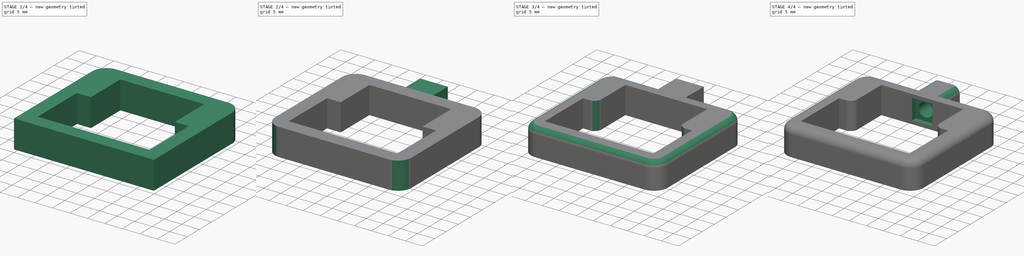
[diagram: build sequence overview — one tinted view per stage of 4, left to right]
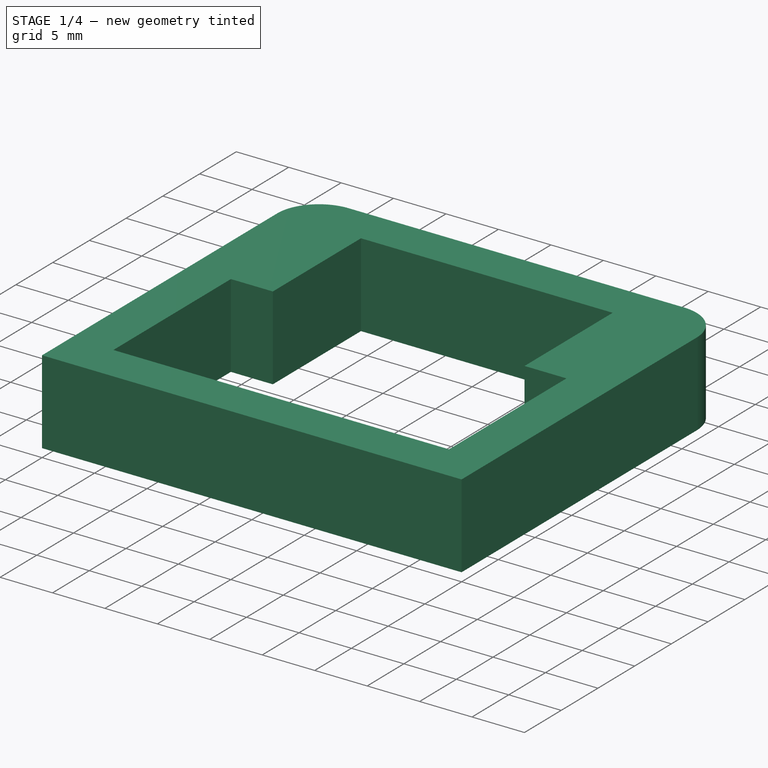
[diagram: stage 1 of 4 — iso view after this stage's code; geometry added in this stage tinted green]
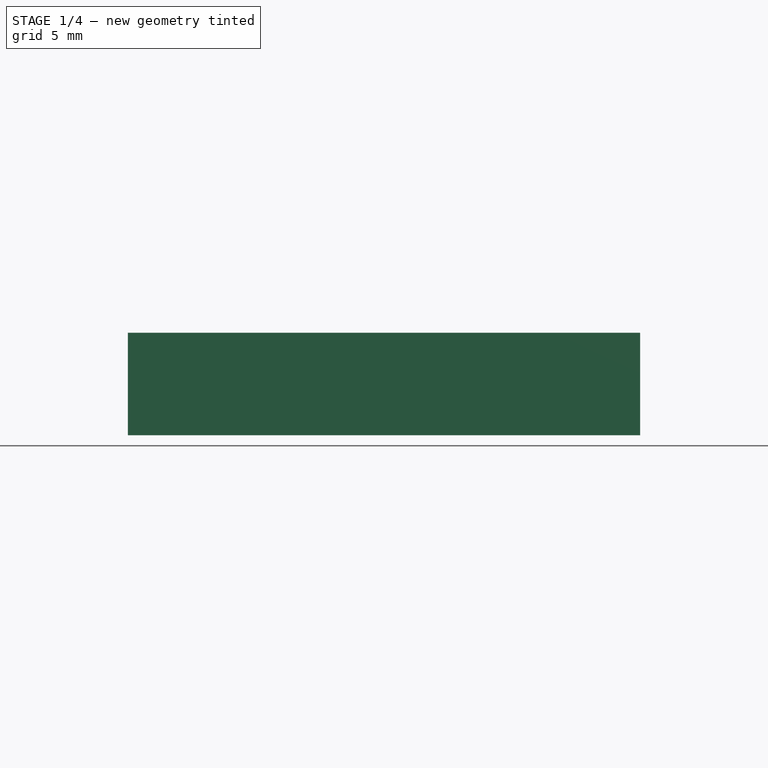
[diagram: stage 1 of 4 — front view after this stage's code; geometry added in this stage tinted green]
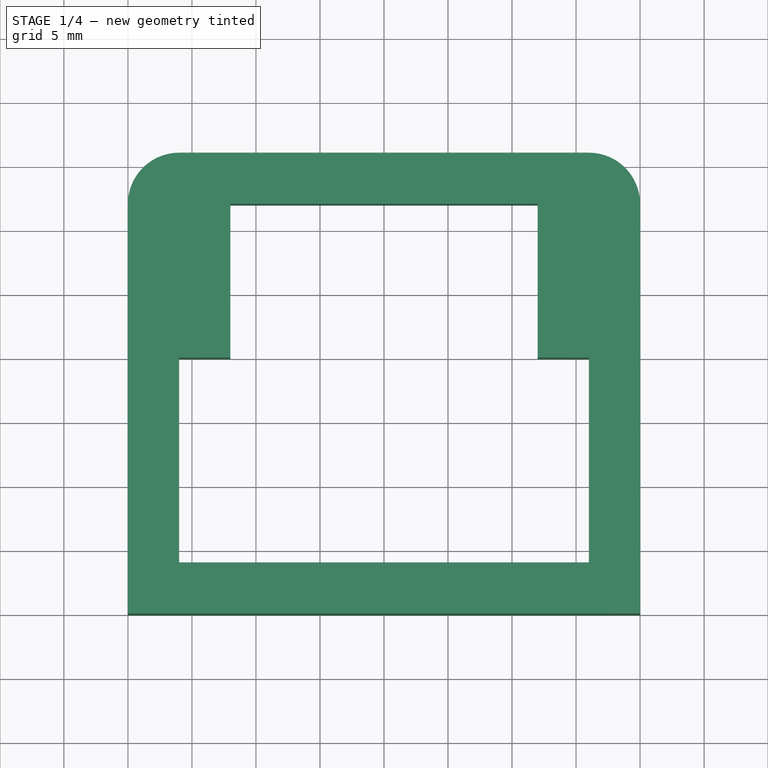
[diagram: stage 1 of 4 — top view after this stage's code; geometry added in this stage tinted green]
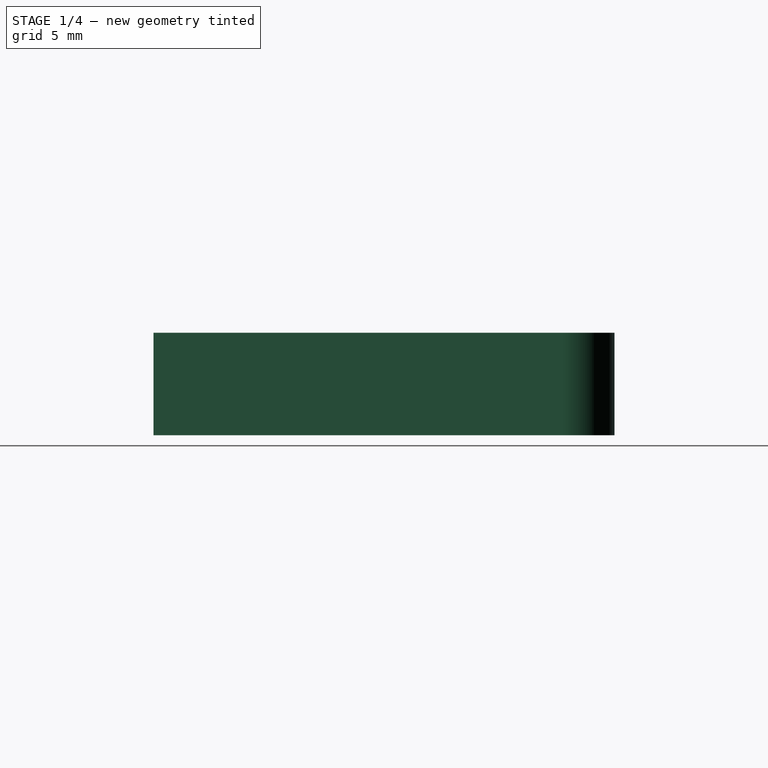
[diagram: stage 1 of 4 — right view after this stage's code; geometry added in this stage tinted green]
FCSTD DOCUMENT  (FreeCAD 0.14R2935 (Git))
Label: servo_holder
License: CC-BY 3.0
LicenseURL: http://creativecommons.org/licenses/by/3.0/
objects: PartDesign::Fillet×9, Sketcher::SketchObject×5, PartDesign::Pocket×3, PartDesign::Pad×2
note: 24 computed .brp shape members not serialized (recipe doc carries the construction recipe); baked Part::Feature solids carry a one-line shape summary decoded from their .brp

FEATURE [Sketcher::SketchObject] Sketch
  sketch-geometry (4):
    g0: LineSegment StartX=0 StartY=0 StartZ=0 EndX=40 EndY=0 EndZ=0
    g1: LineSegment StartX=40 StartY=0 StartZ=0 EndX=40 EndY=36 EndZ=0
    g2: LineSegment StartX=40 StartY=36 StartZ=0 EndX=0 EndY=36 EndZ=0
    g3: LineSegment StartX=0 StartY=36 StartZ=0 EndX=0 EndY=0 EndZ=0
  constraints (11):
    c: Coincident(g0,g1)
    c: Coincident(g1,g2)
    c: Coincident(g2,g3)
    c: Coincident(g3,g0)
    c: Horizontal(g0)
    c: Horizontal(g2)
    c: Vertical(g1)
    c: Vertical(g3)
    c: Coincident(g0,g-1)
    c: DistanceX(g-1,g0) = 40
    c: DistanceY(g1) = 36
FEATURE [PartDesign::Pad] Pad
  Length = 8
  Length2 = 100
  Sketch = -> Sketch
  Type = 0
FEATURE [Sketcher::SketchObject] Sketch001
  Placement = pos=(0,0,8) rot=(0,0,1;0rad)
  Support = -> Pad [Face6]
  sketch-geometry (8):
    g0: LineSegment StartX=4 StartY=4 StartZ=0 EndX=4 EndY=20 EndZ=0
    g1: LineSegment StartX=4 StartY=20 StartZ=0 EndX=8 EndY=20 EndZ=0
    g2: LineSegment StartX=8 StartY=20 StartZ=0 EndX=8 EndY=32 EndZ=0
    g3: LineSegment StartX=8 StartY=32 StartZ=0 EndX=32 EndY=32 EndZ=0
    g4: LineSegment StartX=32 StartY=32 StartZ=0 EndX=32 EndY=20 EndZ=0
    g5: LineSegment StartX=32 StartY=20 StartZ=0 EndX=36 EndY=20 EndZ=0
    g6: LineSegment StartX=36 StartY=20 StartZ=0 EndX=36 EndY=4 EndZ=0
    g7: LineSegment StartX=36 StartY=4 StartZ=0 EndX=4 EndY=4 EndZ=0
  constraints (24):
    c: Vertical(g0)
    c: Coincident(g0,g1)
    c: Horizontal(g1)
    c: Coincident(g1,g2)
    c: Vertical(g2)
    c: Coincident(g2,g3)
    c: Horizontal(g3)
    c: Coincident(g3,g4)
    c: Vertical(g4)
    c: Coincident(g4,g5)
    c: Horizontal(g5)
    c: Coincident(g5,g6)
    c: Vertical(g6)
    c: Coincident(g6,g7)
    c: Horizontal(g7)
    c: Coincident(g7,g0)
    c: DistanceX(g7) = -32
    c: DistanceX(g-1,g0) = 4
    c: DistanceY(g-1,g0) = 4
    c: DistanceY(g0) = 16
    c: DistanceY(g2) = 12
    c: Equal(g1,g5)
    c: DistanceX(g3) = 24
    c: Equal(g2,g4)
FEATURE [PartDesign::Pocket] Pocket
  Length = 8
  Sketch = -> Sketch001
  Type = 0
FEATURE [PartDesign::Fillet] Fillet
  Base = -> Pocket [Edge8]
  Radius = 4
FEATURE [PartDesign::Fillet] Fillet001
  Base = -> Fillet [Edge31]
  Radius = 4
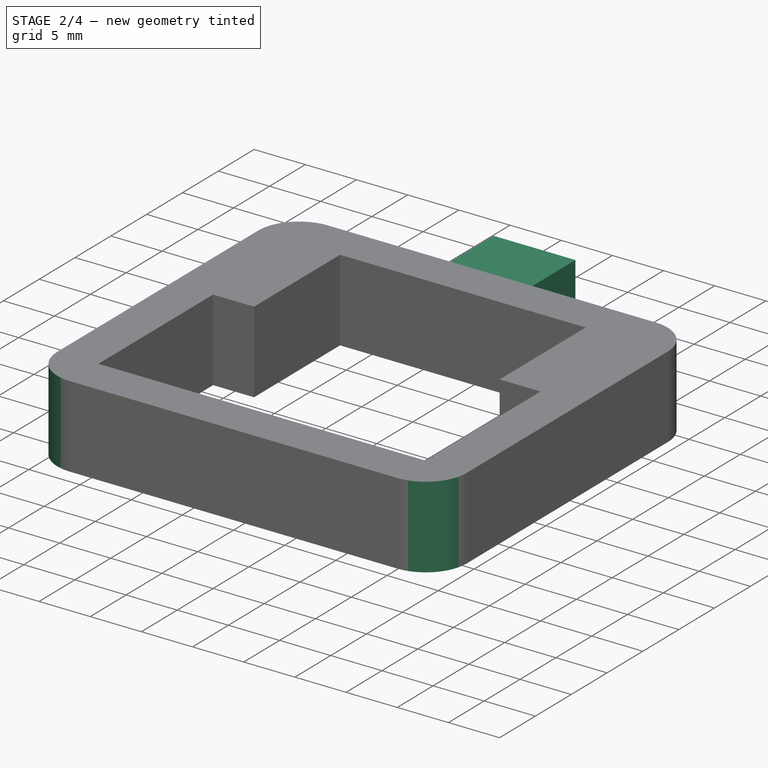
[diagram: stage 2 of 4 — iso view after this stage's code; geometry added in this stage tinted green]
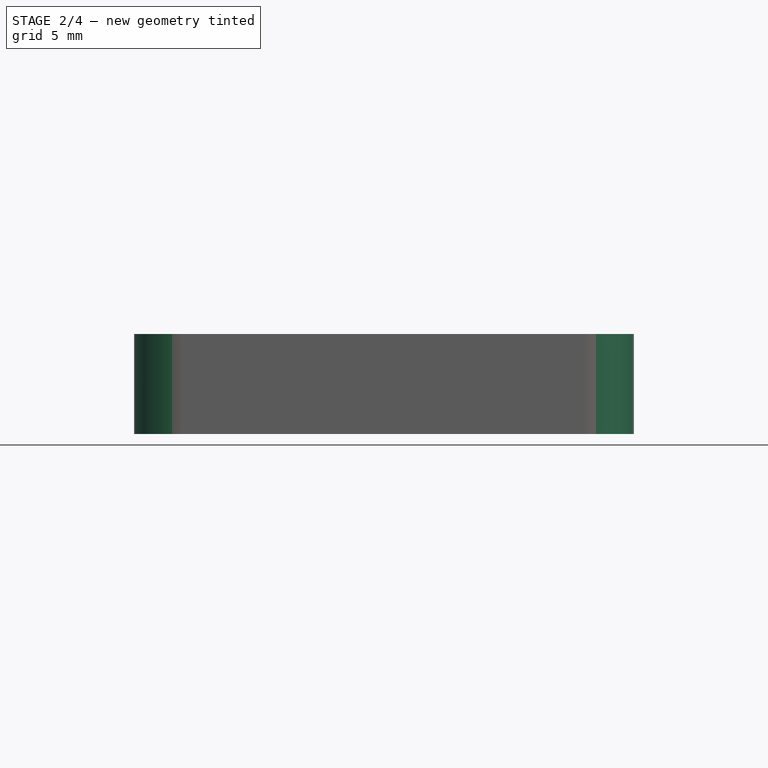
[diagram: stage 2 of 4 — front view after this stage's code; geometry added in this stage tinted green]
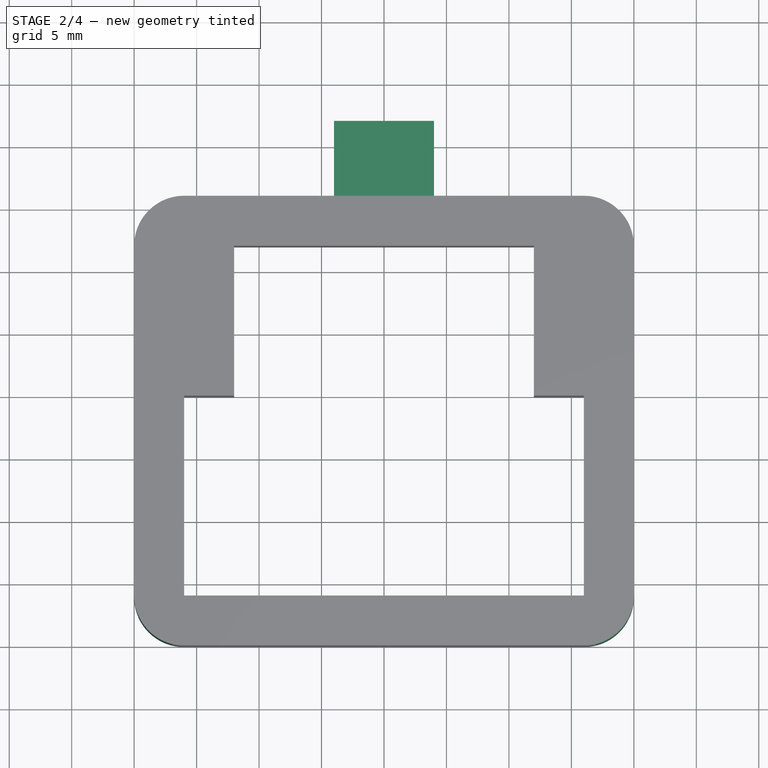
[diagram: stage 2 of 4 — top view after this stage's code; geometry added in this stage tinted green]
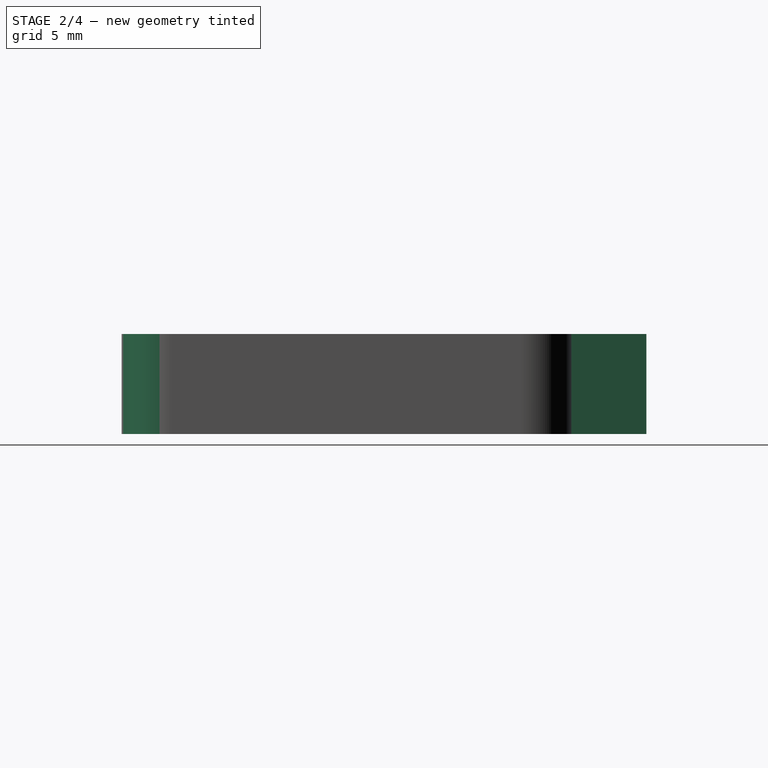
[diagram: stage 2 of 4 — right view after this stage's code; geometry added in this stage tinted green]
FEATURE [PartDesign::Fillet] Fillet002
  Base = -> Fillet001 [Edge24]
  Radius = 4
FEATURE [PartDesign::Fillet] Fillet003
  Base = -> Fillet002 [Edge23]
  Radius = 4
FEATURE [Sketcher::SketchObject] Sketch002
  Placement = pos=(0,36,0) rot=(0,0.707107,0.707107;3.14159rad)
  Support = -> Fillet003 [Face9]
  sketch-geometry (4):
    g0: LineSegment StartX=-24 StartY=0 StartZ=0 EndX=-16 EndY=0 EndZ=0
    g1: LineSegment StartX=-16 StartY=0 StartZ=0 EndX=-16 EndY=8 EndZ=0
    g2: LineSegment StartX=-16 StartY=8 StartZ=0 EndX=-24 EndY=8 EndZ=0
    g3: LineSegment StartX=-24 StartY=8 StartZ=0 EndX=-24 EndY=0 EndZ=0
  constraints (12):
    c: Coincident(g0,g1)
    c: Coincident(g1,g2)
    c: Coincident(g2,g3)
    c: Coincident(g3,g0)
    c: Horizontal(g0)
    c: Horizontal(g2)
    c: Vertical(g1)
    c: Vertical(g3)
    c: DistanceX(g2) = -8
    c: DistanceY(g1) = 8
    c: DistanceY(g-1,g0) = 0
    c: DistanceX(g-1,g0) = -16
FEATURE [PartDesign::Pad] Pad001
  Length = 6
  Length2 = 100
  Sketch = -> Sketch002
  Type = 0
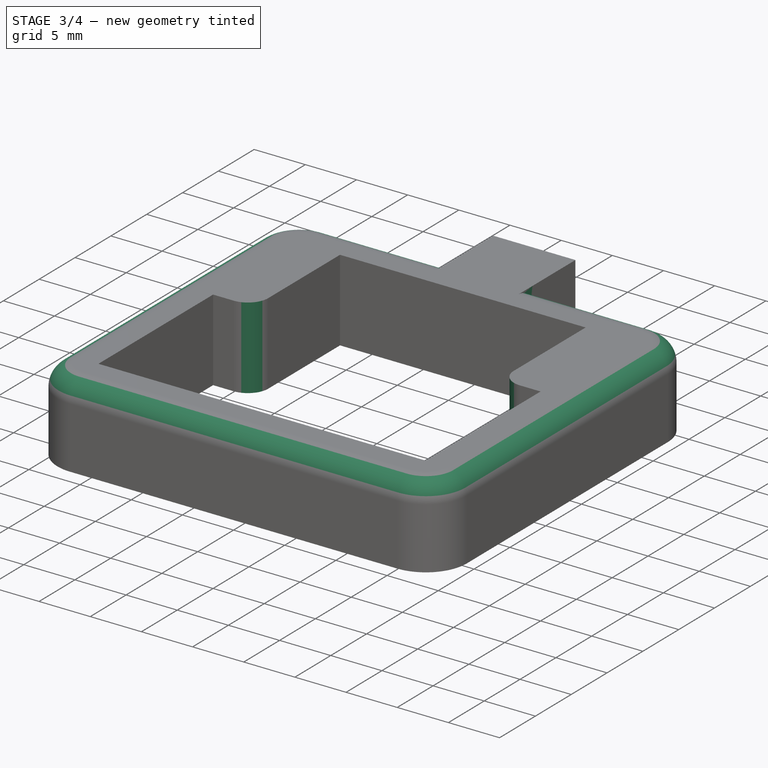
[diagram: stage 3 of 4 — iso view after this stage's code; geometry added in this stage tinted green]
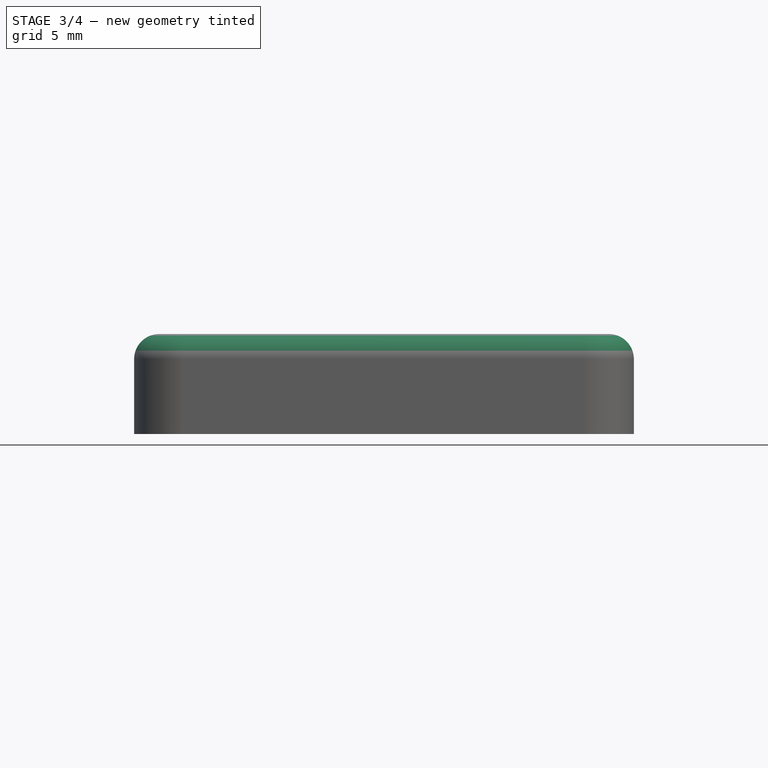
[diagram: stage 3 of 4 — front view after this stage's code; geometry added in this stage tinted green]
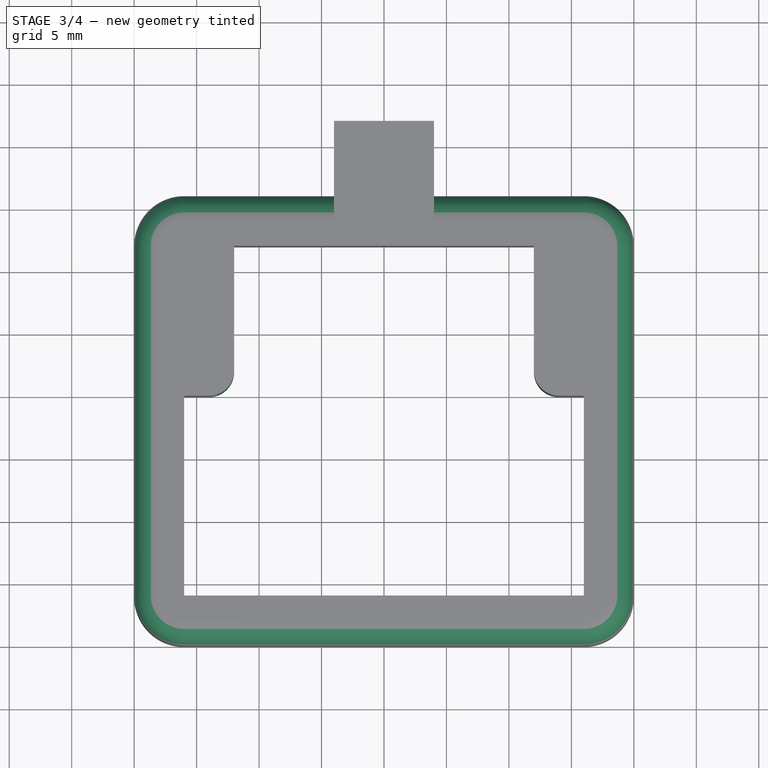
[diagram: stage 3 of 4 — top view after this stage's code; geometry added in this stage tinted green]
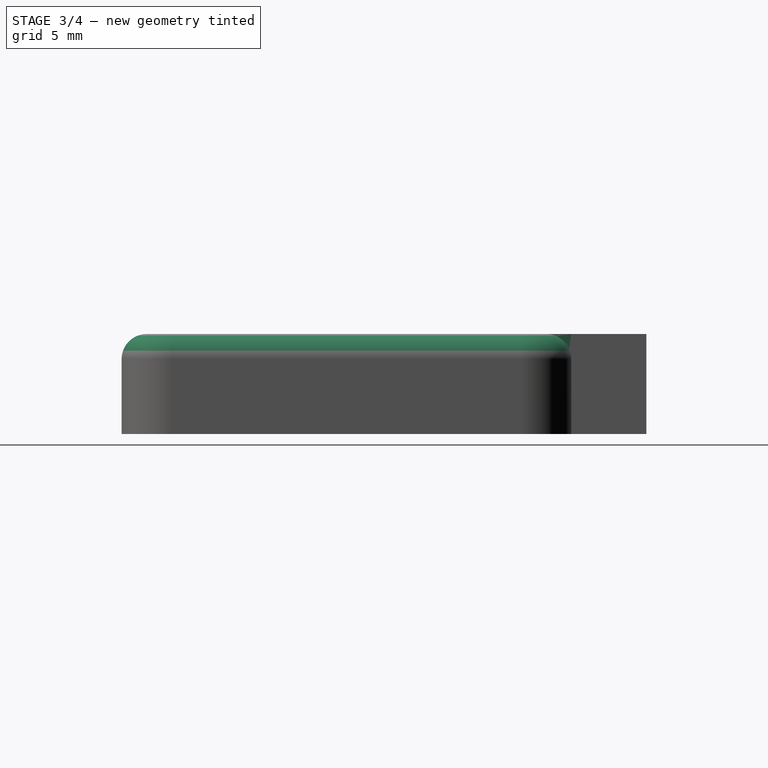
[diagram: stage 3 of 4 — right view after this stage's code; geometry added in this stage tinted green]
FEATURE [PartDesign::Fillet] Fillet004
  Base = -> Pad001 [Edge36]
  Radius = 2
FEATURE [PartDesign::Fillet] Fillet005
  Base = -> Fillet004 [Edge71]
  Radius = 2
FEATURE [PartDesign::Fillet] Fillet006
  Base = -> Fillet005 [Edge38]
  Radius = 2
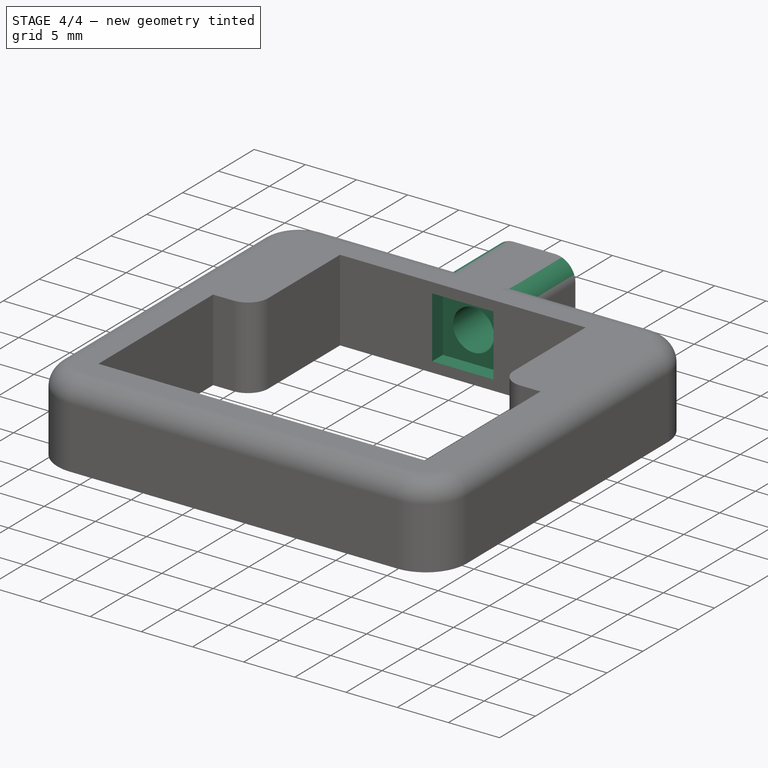
[diagram: stage 4 of 4 — iso view after this stage's code; geometry added in this stage tinted green]
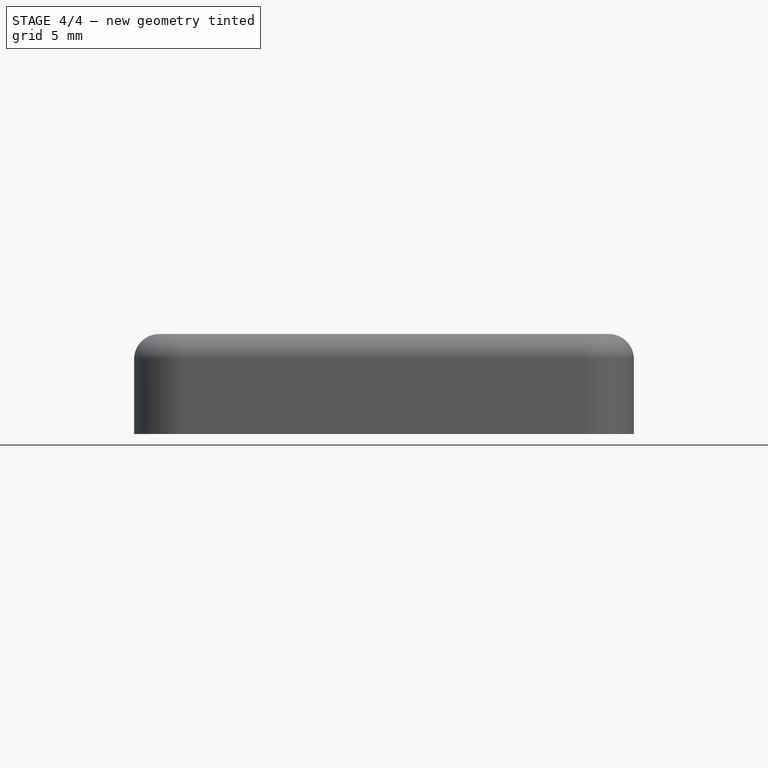
[diagram: stage 4 of 4 — front view after this stage's code; geometry added in this stage tinted green]
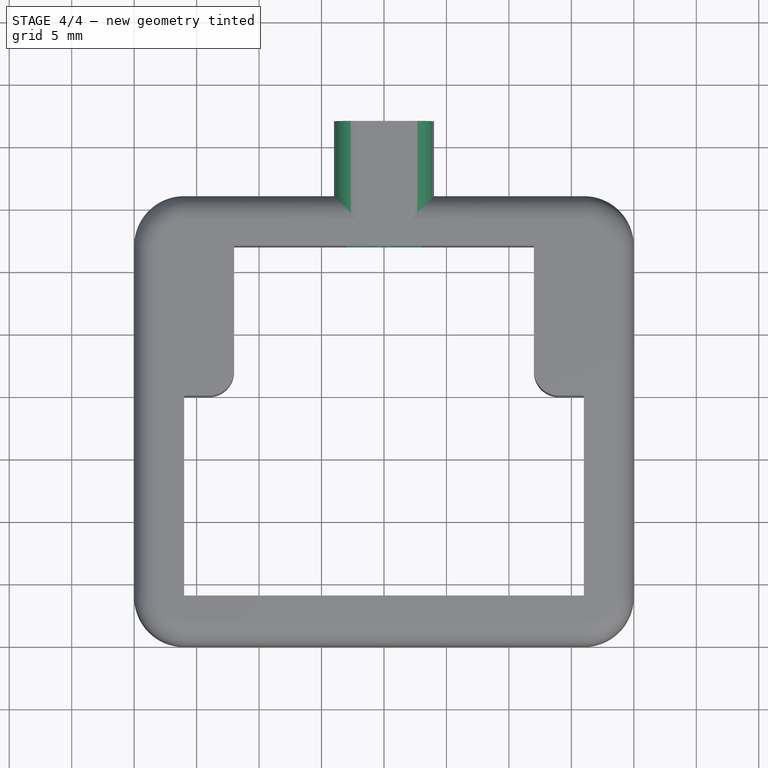
[diagram: stage 4 of 4 — top view after this stage's code; geometry added in this stage tinted green]
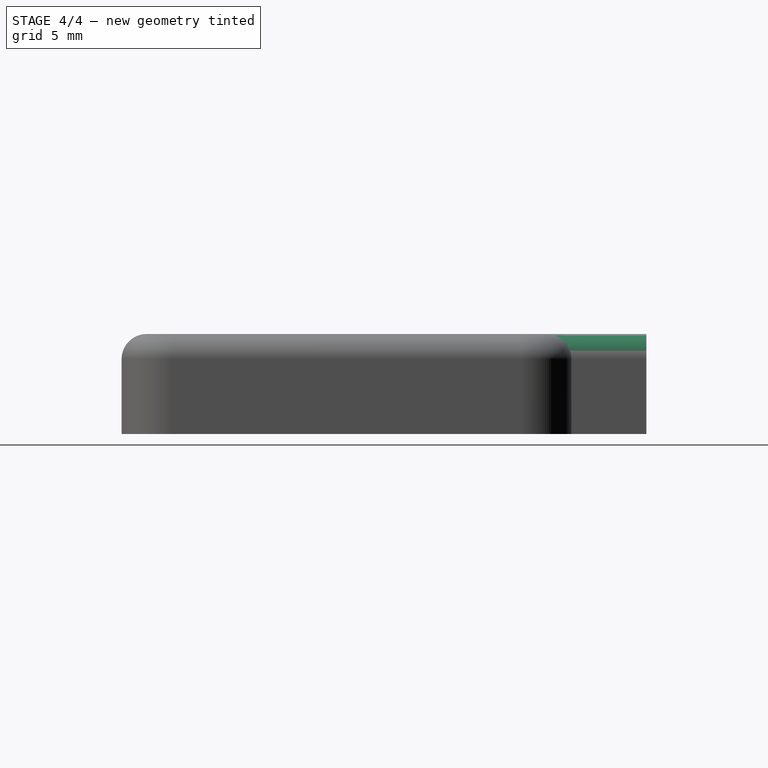
[diagram: stage 4 of 4 — right view after this stage's code; geometry added in this stage tinted green]
FEATURE [PartDesign::Fillet] Fillet007
  Base = -> Fillet006 [Edge49]
  Radius = 2
FEATURE [PartDesign::Fillet] Fillet008
  Base = -> Fillet007 [Edge25]
  Radius = 2
FEATURE [Sketcher::SketchObject] Sketch003
  Placement = pos=(0,42,0) rot=(0,0.707107,0.707107;3.14159rad)
  Support = -> Fillet008 [Face26]
  sketch-geometry (1):
    g0: Circle CenterX=-20 CenterY=4 CenterZ=0 NormalX=0 NormalY=0 NormalZ=1 Radius=2
  constraints (3):
    c: Radius(g0) = 2
    c: DistanceY(g-1,g0) = 4
    c: DistanceX(g-1,g0) = -20
FEATURE [PartDesign::Pocket] Pocket001
  Length = 10
  Sketch = -> Sketch003
  Type = 0
FEATURE [Sketcher::SketchObject] Sketch004
  Placement = pos=(0,32,0) rot=(1,0,0;1.5708rad)
  Support = -> Pocket001 [Face16]
  sketch-geometry (4):
    g0: LineSegment StartX=17 StartY=1 StartZ=0 EndX=23 EndY=1 EndZ=0
    g1: LineSegment StartX=23 StartY=1 StartZ=0 EndX=23 EndY=7 EndZ=0
    g2: LineSegment StartX=23 StartY=7 StartZ=0 EndX=17 EndY=7 EndZ=0
    g3: LineSegment StartX=17 StartY=7 StartZ=0 EndX=17 EndY=1 EndZ=0
  constraints (12):
    c: Coincident(g0,g1)
    c: Coincident(g1,g2)
    c: Coincident(g2,g3)
    c: Coincident(g3,g0)
    c: Horizontal(g0)
    c: Horizontal(g2)
    c: Vertical(g1)
    c: Vertical(g3)
    c: DistanceX(g2) = -6
    c: DistanceY(g1,g0) = -6
    c: DistanceY(g-1,g0) = 1
    c: DistanceX(g-1,g0) = 17
FEATURE [PartDesign::Pocket] Pocket002
  Length = 1.5
  Sketch = -> Sketch004
  Type = 0
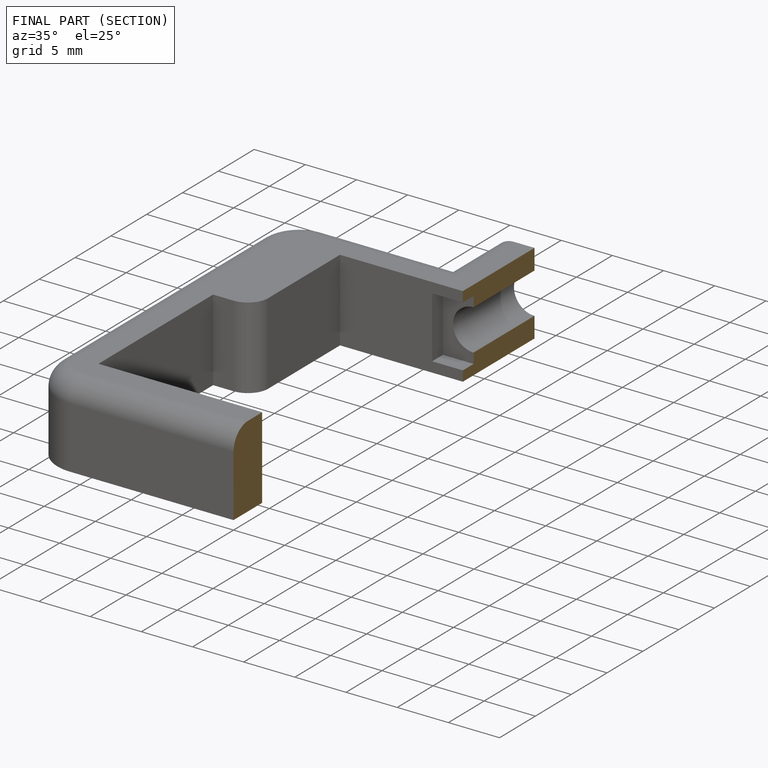
[diagram: finished part — half-section view (interior)]
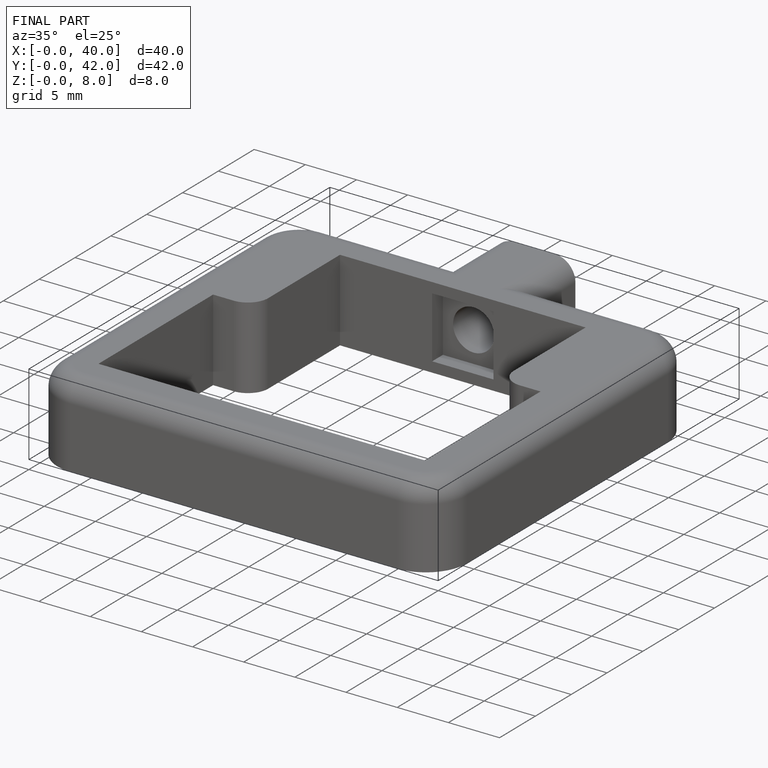
[diagram: finished part — iso view with bounding-box wireframe]
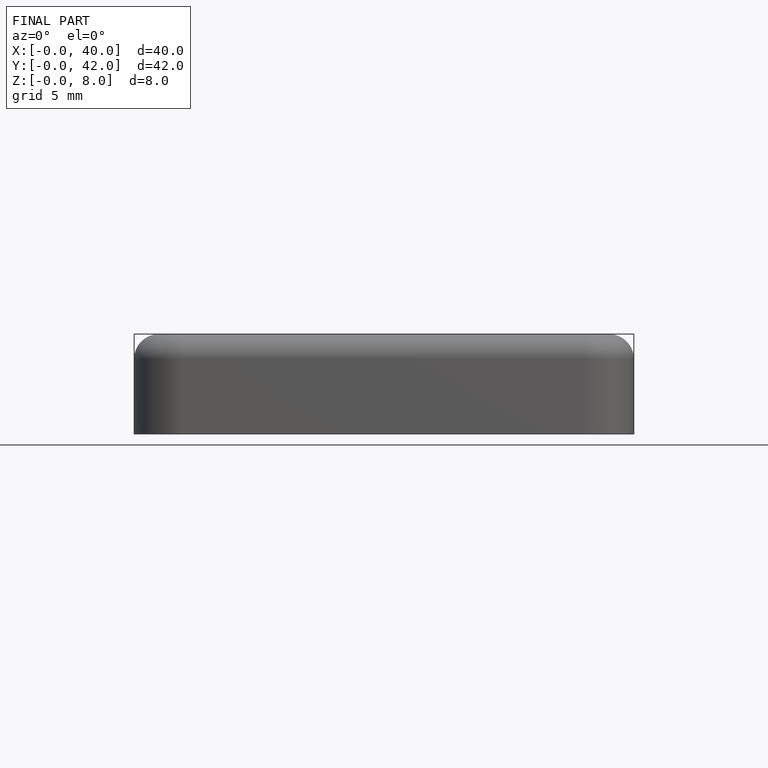
[diagram: finished part — front view with bounding-box wireframe]
